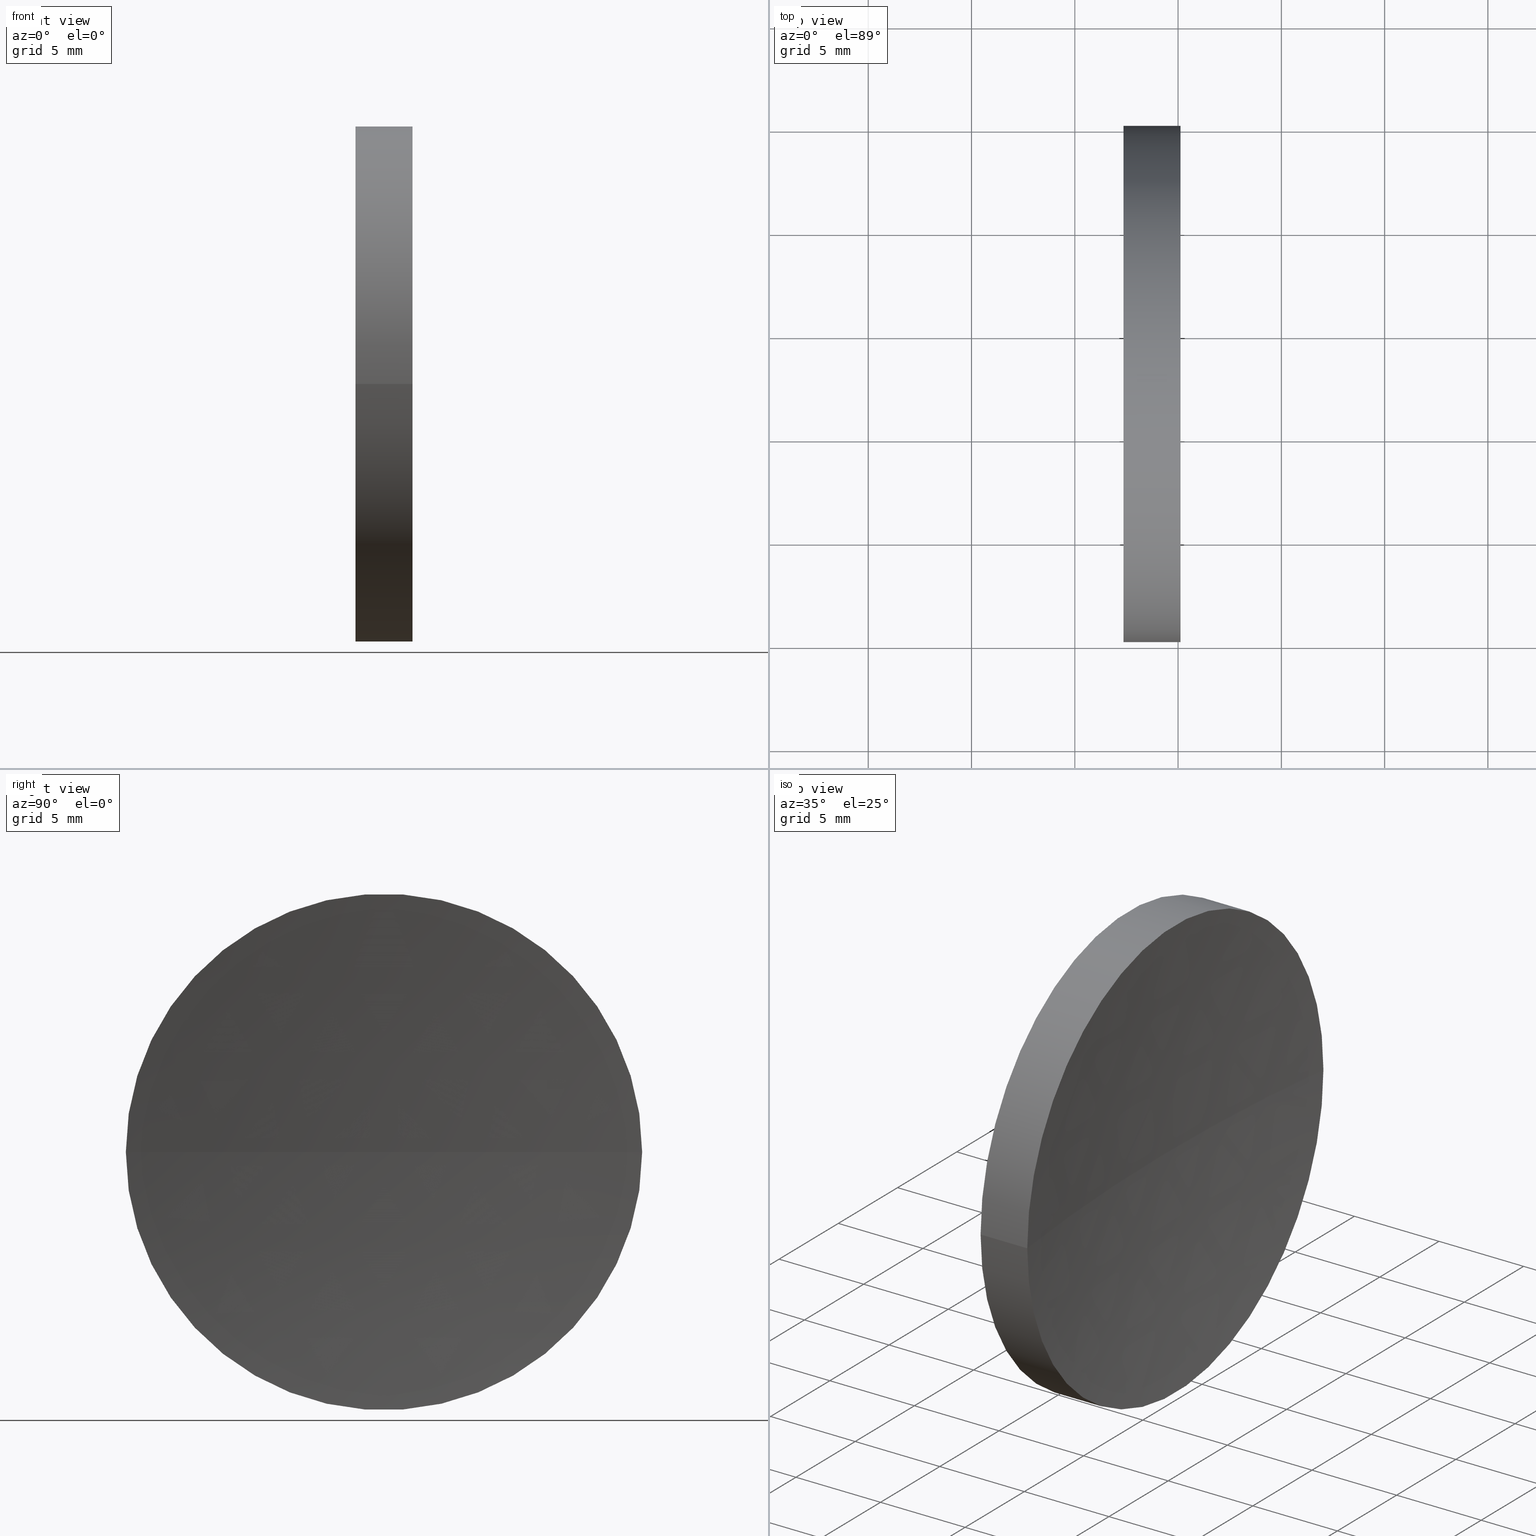
[diagram: canonical four-view strip — front | top / right | iso, engineering-drawing reading convention]
A machine part, canonical four-view strip (front | top / right | iso — engineering-drawing reading convention). The complete STEP part file that produces these views, byte-faithful:
ISO-10303-21;
HEADER;
FILE_DESCRIPTION (( 'STEP AP214' ),
    '1' );
FILE_NAME ('120158.STEP',
    '2019-06-20T07:40:12',
    ( '' ),
    ( '' ),
    'SwSTEP 2.0',
    'SolidWorks 2016',
    '' );
FILE_SCHEMA (( 'AUTOMOTIVE_DESIGN' ));
ENDSEC;

DATA;
#1 = DIRECTION ( 'NONE',  ( -9.351536221073556900E-032, -1.224646799147353200E-016, 1.000000000000000000 ) ) ;
#2 = ADVANCED_FACE ( 'NONE', ( #67 ), #70, .F. ) ;
#3 = VERTEX_POINT ( 'NONE', #165 ) ;
#4 = SURFACE_STYLE_FILL_AREA ( #106 ) ;
#5 = UNCERTAINTY_MEASURE_WITH_UNIT (LENGTH_MEASURE( 1.000000000000000100E-005 ), #88, 'distance_accuracy_value', 'NONE');
#6 = SURFACE_SIDE_STYLE ('',( #134 ) ) ;
#7 =( NAMED_UNIT ( * ) PLANE_ANGLE_UNIT ( ) SI_UNIT ( $, .RADIAN. ) );
#8 = CYLINDRICAL_SURFACE ( 'NONE', #147, 12.50000000000000000 ) ;
#9 = AXIS2_PLACEMENT_3D ( 'NONE', #83, #33, #149 ) ;
#10 = DIRECTION ( 'NONE',  ( 0.0000000000000000000, -1.000000000000000000, -1.224646799147353200E-016 ) ) ;
#11 = VERTEX_POINT ( 'NONE', #40 ) ;
#12 =( NAMED_UNIT ( * ) SI_UNIT ( $, .STERADIAN. ) SOLID_ANGLE_UNIT ( ) );
#13 = FILL_AREA_STYLE_COLOUR ( '', #31 ) ;
#14 = CARTESIAN_POINT ( 'NONE',  ( 55.00739462442118800, 45.07872591329309100, 1.530808498934191500E-015 ) ) ;
#15 = PRODUCT_DEFINITION_FORMATION_WITH_SPECIFIED_SOURCE ( '�κ�', '', #74, .NOT_KNOWN. ) ;
#16 = AXIS2_PLACEMENT_3D ( 'NONE', #60, #160, #110 ) ;
#17 = DIRECTION ( 'NONE',  ( -8.062231491758977600E-016, -1.000000000000000000, 0.0000000000000000000 ) ) ;
#18 = ORIENTED_EDGE ( 'NONE', *, *, #112, .F. ) ;
#19 = ORIENTED_EDGE ( 'NONE', *, *, #51, .T. ) ;
#20 = VERTEX_POINT ( 'NONE', #124 ) ;
#21 = ORIENTED_EDGE ( 'NONE', *, *, #146, .T. ) ;
#22 = STYLED_ITEM ( 'NONE', ( #113 ), #127 ) ;
#23 = SURFACE_STYLE_USAGE ( .BOTH. , #6 ) ;
#24 = CARTESIAN_POINT ( 'NONE',  ( 60.11741957956709100, 32.57872591329309100, 0.0000000000000000000 ) ) ;
#25 =( NAMED_UNIT ( * ) PLANE_ANGLE_UNIT ( ) SI_UNIT ( $, .RADIAN. ) );
#26 = MECHANICAL_DESIGN_GEOMETRIC_PRESENTATION_REPRESENTATION (  '', ( #72 ), #101 ) ;
#27 = DIRECTION ( 'NONE',  ( -1.000000000000000000, 7.636108817321419600E-016, -0.0000000000000000000 ) ) ;
#28 = DIRECTION ( 'NONE',  ( -5.551115123125782700E-016, -1.000000000000000000, 0.0000000000000000000 ) ) ;
#29 = LINE ( 'NONE', #14, #64 ) ;
#30 = ORIENTED_EDGE ( 'NONE', *, *, #121, .F. ) ;
#31 = COLOUR_RGB ( '',1.000000000000000000, 1.000000000000000000, 1.000000000000000000 ) ;
#32 = PRESENTATION_LAYER_ASSIGNMENT (  '', '', ( #72 ) ) ;
#33 = DIRECTION ( 'NONE',  ( 0.0000000000000000000, 0.0000000000000000000, 1.000000000000000000 ) ) ;
#34 = CIRCLE ( 'NONE', #151, 103.2800000000000300 ) ;
#35 = ADVANCED_FACE ( 'NONE', ( #66 ), #8, .T. ) ;
#36 = DIRECTION ( 'NONE',  ( -5.551115123125782700E-016, -1.000000000000000000, 0.0000000000000000000 ) ) ;
#37 = DIRECTION ( 'NONE',  ( -1.000000000000000000, 7.636108817321419600E-016, -0.0000000000000000000 ) ) ;
#38 = FACE_OUTER_BOUND ( 'NONE', #49, .T. ) ;
#39 = AXIS2_PLACEMENT_3D ( 'NONE', #155, #102, #131 ) ;
#40 = CARTESIAN_POINT ( 'NONE',  ( 60.11741957956707700, 20.07872591329309800, 0.0000000000000000000 ) ) ;
#41 = ORIENTED_EDGE ( 'NONE', *, *, #146, .F. ) ;
#42 = DIRECTION ( 'NONE',  ( -1.000000000000000000, 7.636108817321419600E-016, -0.0000000000000000000 ) ) ;
#43 = APPLICATION_CONTEXT ( 'automotive_design' ) ;
#44 = ORIENTED_EDGE ( 'NONE', *, *, #97, .F. ) ;
#45 = CARTESIAN_POINT ( 'NONE',  ( 60.11741957956709100, 32.57872591329309100, 0.0000000000000000000 ) ) ;
#46 = PLANE ( 'NONE',  #16 ) ;
#47 = CARTESIAN_POINT ( 'NONE',  ( 60.11741957956710500, 45.07872591329317700, 1.530808498934189900E-015 ) ) ;
#48 = VERTEX_POINT ( 'NONE', #115 ) ;
#49 = EDGE_LOOP ( 'NONE', ( #44, #19, #18 ) ) ;
#50 = UNCERTAINTY_MEASURE_WITH_UNIT (LENGTH_MEASURE( 1.000000000000000100E-005 ), #57, 'distance_accuracy_value', 'NONE');
#51 = EDGE_CURVE ( 'NONE', #91, #48, #109, .T. ) ;
#52 = EDGE_LOOP ( 'NONE', ( #137, #80, #125 ) ) ;
#53 = ADVANCED_FACE ( 'NONE', ( #38 ), #100, .F. ) ;
#54 = CIRCLE ( 'NONE', #116, 12.50000000000000000 ) ;
#55 = EDGE_LOOP ( 'NONE', ( #87, #128 ) ) ;
#56 = CIRCLE ( 'NONE', #96, 12.49999999999999600 ) ;
#57 =( LENGTH_UNIT ( ) NAMED_UNIT ( * ) SI_UNIT ( .MILLI., .METRE. ) );
#58 = DIRECTION ( 'NONE',  ( -5.551115123125784700E-016, -1.000000000000000000, 0.0000000000000000000 ) ) ;
#59 = CARTESIAN_POINT ( 'NONE',  ( 162.6381901580211000, 32.57872591329311300, 0.0000000000000000000 ) ) ;
#60 = CARTESIAN_POINT ( 'NONE',  ( 57.35819015802111000, 32.57872591329309100, 0.0000000000000000000 ) ) ;
#61 = VECTOR ( 'NONE', #42, 1000.000000000000000 ) ;
#62 = DIRECTION ( 'NONE',  ( 0.0000000000000000000, 0.0000000000000000000, 1.000000000000000000 ) ) ;
#63 = EDGE_CURVE ( 'NONE', #11, #20, #138, .T. ) ;
#64 = VECTOR ( 'NONE', #27, 1000.000000000000000 ) ;
#65 =( GEOMETRIC_REPRESENTATION_CONTEXT ( 3 ) GLOBAL_UNCERTAINTY_ASSIGNED_CONTEXT ( ( #84 ) ) GLOBAL_UNIT_ASSIGNED_CONTEXT ( ( #120, #7, #90 ) ) REPRESENTATION_CONTEXT ( 'NONE', 'WORKASPACE' ) );
#66 = FACE_OUTER_BOUND ( 'NONE', #126, .T. ) ;
#67 = FACE_OUTER_BOUND ( 'NONE', #52, .T. ) ;
#68 = CARTESIAN_POINT ( 'NONE',  ( 162.6381901580211000, 32.57872591329311300, 0.0000000000000000000 ) ) ;
#69 = DIRECTION ( 'NONE',  ( -5.551115123125784700E-016, -1.000000000000000000, 0.0000000000000000000 ) ) ;
#70 = SPHERICAL_SURFACE ( 'NONE', #166, 103.2800000000000300 ) ;
#71 = ADVANCED_FACE ( 'NONE', ( #140 ), #46, .F. ) ;
#72 = STYLED_ITEM ( 'NONE', ( #105 ), #73 ) ;
#73 = ADVANCED_BREP_SHAPE_REPRESENTATION ( '120158', ( #127, #39 ), #92 ) ;
#74 = PRODUCT ( '120158', '120158', '', ( #117 ) ) ;
#75 = EDGE_CURVE ( 'NONE', #20, #3, #56, .T. ) ;
#76 = CARTESIAN_POINT ( 'NONE',  ( 55.00739462442118100, 32.57872591329309800, 0.0000000000000000000 ) ) ;
#77 = AXIS2_PLACEMENT_3D ( 'NONE', #76, #159, #104 ) ;
#78 = AXIS2_PLACEMENT_3D ( 'NONE', #68, #1, #10 ) ;
#79 = ORIENTED_EDGE ( 'NONE', *, *, #97, .T. ) ;
#80 = ORIENTED_EDGE ( 'NONE', *, *, #150, .F. ) ;
#81 = PRESENTATION_LAYER_ASSIGNMENT (  '', '', ( #22 ) ) ;
#82 = EDGE_LOOP ( 'NONE', ( #41, #79, #162, #30 ) ) ;
#83 = CARTESIAN_POINT ( 'NONE',  ( 162.6381901580211000, 32.57872591329311300, 0.0000000000000000000 ) ) ;
#84 = UNCERTAINTY_MEASURE_WITH_UNIT (LENGTH_MEASURE( 1.000000000000000100E-005 ), #120, 'distance_accuracy_value', 'NONE');
#85 =( NAMED_UNIT ( * ) PLANE_ANGLE_UNIT ( ) SI_UNIT ( $, .RADIAN. ) );
#86 = SURFACE_STYLE_USAGE ( .BOTH. , #157 ) ;
#87 = ORIENTED_EDGE ( 'NONE', *, *, #75, .T. ) ;
#88 =( LENGTH_UNIT ( ) NAMED_UNIT ( * ) SI_UNIT ( .MILLI., .METRE. ) );
#89 =( NAMED_UNIT ( * ) SI_UNIT ( $, .STERADIAN. ) SOLID_ANGLE_UNIT ( ) );
#90 =( NAMED_UNIT ( * ) SI_UNIT ( $, .STERADIAN. ) SOLID_ANGLE_UNIT ( ) );
#91 = VERTEX_POINT ( 'NONE', #47 ) ;
#92 =( GEOMETRIC_REPRESENTATION_CONTEXT ( 3 ) GLOBAL_UNCERTAINTY_ASSIGNED_CONTEXT ( ( #5 ) ) GLOBAL_UNIT_ASSIGNED_CONTEXT ( ( #88, #25, #89 ) ) REPRESENTATION_CONTEXT ( 'NONE', 'WORKASPACE' ) );
#93 = ORIENTED_EDGE ( 'NONE', *, *, #150, .T. ) ;
#94 = CYLINDRICAL_SURFACE ( 'NONE', #77, 12.50000000000000000 ) ;
#95 = CIRCLE ( 'NONE', #148, 12.50000000000000000 ) ;
#96 = AXIS2_PLACEMENT_3D ( 'NONE', #142, #98, #69 ) ;
#97 = EDGE_CURVE ( 'NONE', #91, #11, #95, .T. ) ;
#98 = DIRECTION ( 'NONE',  ( -1.000000000000000000, 7.636108817321419600E-016, -0.0000000000000000000 ) ) ;
#99 = FACE_OUTER_BOUND ( 'NONE', #82, .T. ) ;
#100 = SPHERICAL_SURFACE ( 'NONE', #9, 103.2800000000000300 ) ;
#101 =( GEOMETRIC_REPRESENTATION_CONTEXT ( 3 ) GLOBAL_UNCERTAINTY_ASSIGNED_CONTEXT ( ( #50 ) ) GLOBAL_UNIT_ASSIGNED_CONTEXT ( ( #57, #85, #12 ) ) REPRESENTATION_CONTEXT ( 'NONE', 'WORKASPACE' ) );
#102 = DIRECTION ( 'NONE',  ( 0.0000000000000000000, 0.0000000000000000000, 1.000000000000000000 ) ) ;
#103 = APPLICATION_PROTOCOL_DEFINITION ( 'draft international standard', 'automotive_design', 1998, #132 ) ;
#104 = DIRECTION ( 'NONE',  ( -5.551115123125782700E-016, -1.000000000000000000, 0.0000000000000000000 ) ) ;
#105 = PRESENTATION_STYLE_ASSIGNMENT (( #23 ) ) ;
#106 = FILL_AREA_STYLE ('',( #13 ) ) ;
#107 = DIRECTION ( 'NONE',  ( 0.0000000000000000000, -0.0000000000000000000, -1.000000000000000000 ) ) ;
#108 = MECHANICAL_DESIGN_GEOMETRIC_PRESENTATION_REPRESENTATION (  '', ( #22 ), #65 ) ;
#109 = CIRCLE ( 'NONE', #78, 103.2800000000000300 ) ;
#110 = DIRECTION ( 'NONE',  ( 7.636108817321419600E-016, 1.000000000000000000, 0.0000000000000000000 ) ) ;
#111 = CARTESIAN_POINT ( 'NONE',  ( 55.00739462442118100, 32.57872591329309800, 0.0000000000000000000 ) ) ;
#112 = EDGE_CURVE ( 'NONE', #11, #48, #34, .T. ) ;
#113 = PRESENTATION_STYLE_ASSIGNMENT (( #86 ) ) ;
#114 = PRODUCT_DEFINITION ( 'δ֪', '', #15, #130 ) ;
#115 = CARTESIAN_POINT ( 'NONE',  ( 59.35819015802108800, 32.57872591329317700, 0.0000000000000000000 ) ) ;
#116 = AXIS2_PLACEMENT_3D ( 'NONE', #24, #118, #36 ) ;
#117 = PRODUCT_CONTEXT ( 'NONE', #43, 'mechanical' ) ;
#118 = DIRECTION ( 'NONE',  ( -1.000000000000000000, 7.636108817321419600E-016, -0.0000000000000000000 ) ) ;
#119 = DIRECTION ( 'NONE',  ( -5.551115123125782700E-016, -1.000000000000000000, 0.0000000000000000000 ) ) ;
#120 =( LENGTH_UNIT ( ) NAMED_UNIT ( * ) SI_UNIT ( .MILLI., .METRE. ) );
#121 = EDGE_CURVE ( 'NONE', #3, #20, #143, .T. ) ;
#122 = PRODUCT_RELATED_PRODUCT_CATEGORY ( 'part', '', ( #74 ) ) ;
#123 = DIRECTION ( 'NONE',  ( -1.000000000000000000, 7.636108817321419600E-016, -0.0000000000000000000 ) ) ;
#124 = CARTESIAN_POINT ( 'NONE',  ( 57.35819015802110200, 20.07872591329309800, 0.0000000000000000000 ) ) ;
#125 = ORIENTED_EDGE ( 'NONE', *, *, #112, .T. ) ;
#126 = EDGE_LOOP ( 'NONE', ( #93, #21, #133, #141 ) ) ;
#127 = MANIFOLD_SOLID_BREP ( '��ת1', #161 ) ;
#128 = ORIENTED_EDGE ( 'NONE', *, *, #121, .T. ) ;
#129 = CARTESIAN_POINT ( 'NONE',  ( 55.00739462442117400, 20.07872591329309500, 0.0000000000000000000 ) ) ;
#130 = PRODUCT_DEFINITION_CONTEXT ( 'detailed design', #132, 'design' ) ;
#131 = DIRECTION ( 'NONE',  ( 1.000000000000000000, 0.0000000000000000000, 0.0000000000000000000 ) ) ;
#132 = APPLICATION_CONTEXT ( 'automotive_design' ) ;
#133 = ORIENTED_EDGE ( 'NONE', *, *, #75, .F. ) ;
#134 = SURFACE_STYLE_FILL_AREA ( #144 ) ;
#135 = CARTESIAN_POINT ( 'NONE',  ( 57.35819015802111000, 32.57872591329309800, 0.0000000000000000000 ) ) ;
#136 = DIRECTION ( 'NONE',  ( -1.000000000000000000, 0.0000000000000000000, 0.0000000000000000000 ) ) ;
#137 = ORIENTED_EDGE ( 'NONE', *, *, #51, .F. ) ;
#138 = LINE ( 'NONE', #129, #61 ) ;
#139 = COLOUR_RGB ( '',1.000000000000000000, 1.000000000000000000, 1.000000000000000000 ) ;
#140 = FACE_OUTER_BOUND ( 'NONE', #55, .T. ) ;
#141 = ORIENTED_EDGE ( 'NONE', *, *, #63, .F. ) ;
#142 = CARTESIAN_POINT ( 'NONE',  ( 57.35819015802111000, 32.57872591329309800, 0.0000000000000000000 ) ) ;
#143 = CIRCLE ( 'NONE', #163, 12.49999999999999600 ) ;
#144 = FILL_AREA_STYLE ('',( #145 ) ) ;
#145 = FILL_AREA_STYLE_COLOUR ( '', #139 ) ;
#146 = EDGE_CURVE ( 'NONE', #91, #3, #29, .T. ) ;
#147 = AXIS2_PLACEMENT_3D ( 'NONE', #111, #123, #28 ) ;
#148 = AXIS2_PLACEMENT_3D ( 'NONE', #45, #37, #119 ) ;
#149 = DIRECTION ( 'NONE',  ( -8.062231491758977600E-016, -1.000000000000000000, 0.0000000000000000000 ) ) ;
#150 = EDGE_CURVE ( 'NONE', #11, #91, #54, .T. ) ;
#151 = AXIS2_PLACEMENT_3D ( 'NONE', #59, #107, #136 ) ;
#152 = ADVANCED_FACE ( 'NONE', ( #99 ), #94, .T. ) ;
#153 = SHAPE_DEFINITION_REPRESENTATION ( #154, #73 ) ;
#154 = PRODUCT_DEFINITION_SHAPE ( 'NONE', 'NONE',  #114 ) ;
#155 = CARTESIAN_POINT ( 'NONE',  ( 0.0000000000000000000, 0.0000000000000000000, 0.0000000000000000000 ) ) ;
#156 = APPLICATION_PROTOCOL_DEFINITION ( 'draft international standard', 'automotive_design', 1998, #43 ) ;
#157 = SURFACE_SIDE_STYLE ('',( #4 ) ) ;
#158 = DIRECTION ( 'NONE',  ( -1.000000000000000000, 7.636108817321419600E-016, -0.0000000000000000000 ) ) ;
#159 = DIRECTION ( 'NONE',  ( -1.000000000000000000, 7.636108817321419600E-016, -0.0000000000000000000 ) ) ;
#160 = DIRECTION ( 'NONE',  ( 1.000000000000000000, -7.636108817321419600E-016, 0.0000000000000000000 ) ) ;
#161 = CLOSED_SHELL ( 'NONE', ( #35, #53, #2, #152, #71 ) ) ;
#162 = ORIENTED_EDGE ( 'NONE', *, *, #63, .T. ) ;
#163 = AXIS2_PLACEMENT_3D ( 'NONE', #135, #158, #58 ) ;
#164 = CARTESIAN_POINT ( 'NONE',  ( 162.6381901580211000, 32.57872591329311300, 0.0000000000000000000 ) ) ;
#165 = CARTESIAN_POINT ( 'NONE',  ( 57.35819015802111700, 45.07872591329309100, 1.530808498934191900E-015 ) ) ;
#166 = AXIS2_PLACEMENT_3D ( 'NONE', #164, #62, #17 ) ;
ENDSEC;
END-ISO-10303-21;
